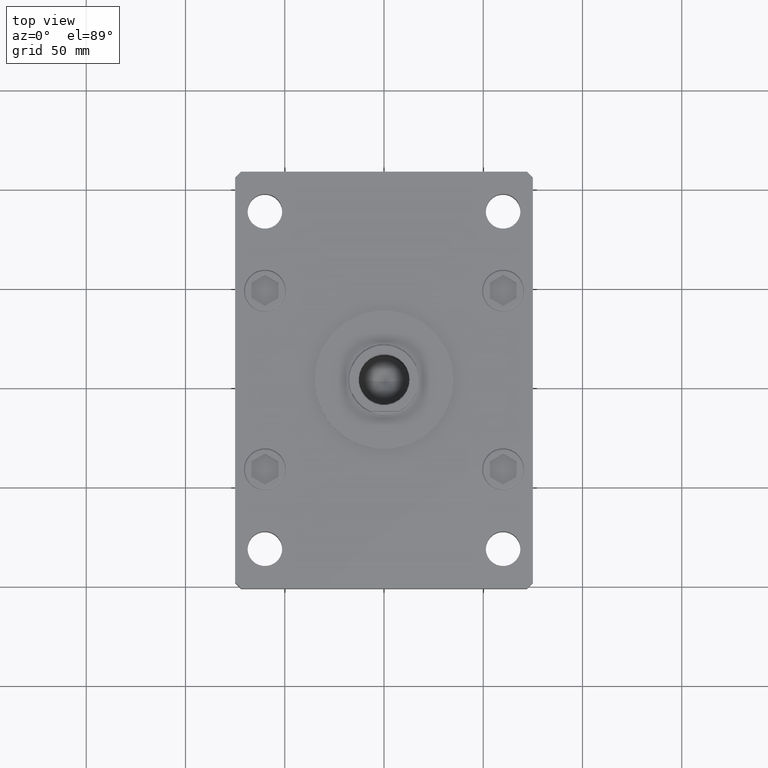
[diagram: clean part render]
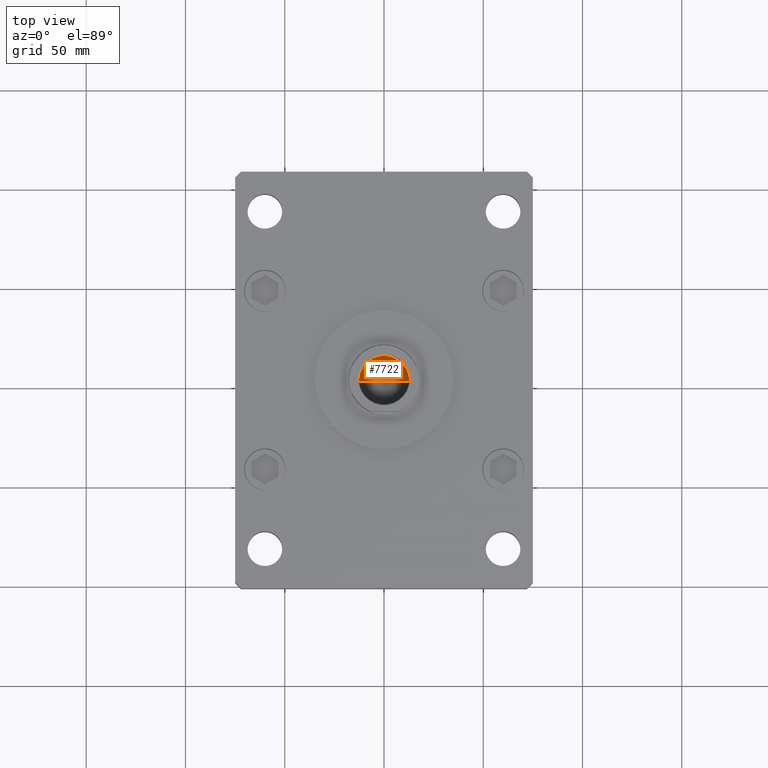
[diagram: same view with one face highlighted and labeled with its STEP entity id]
A machine part, top view. The second image highlights one B-rep face of the part: STEP entity #7722.
In plain terms, the highlighted conical surface has half-angle 59 deg.
Its self-contained STEP definition (entity closure, byte-faithful):
#797 = DIRECTION ( 'NONE',  ( -0.8571673007021125557, 1.049727191138618942E-16, 0.5150380749100536004 ) ) ;
#1251 = FACE_OUTER_BOUND ( 'NONE', #19603, .T. ) ;
#1431 = VECTOR ( 'NONE', #31198, 1000.000000000000114 ) ;
#2367 = VECTOR ( 'NONE', #797, 1000.000000000000114 ) ;
#4862 = CARTESIAN_POINT ( 'NONE',  ( -12.74999999999999112, 1.561424668912874125E-15, 184.5000000000000000 ) ) ;
#5607 = VERTEX_POINT ( 'NONE', #22875 ) ;
#6079 = ORIENTED_EDGE ( 'NONE', *, *, #10358, .T. ) ;
#7722 = ADVANCED_FACE ( 'NONE', ( #1251 ), #21231, .F. ) ;
#8584 = DIRECTION ( 'NONE',  ( 1.000000000000000000, 0.000000000000000000, 0.000000000000000000 ) ) ;
#10296 = VERTEX_POINT ( 'NONE', #46377 ) ;
#10358 = EDGE_CURVE ( 'NONE', #10296, #5607, #17678, .T. ) ;
#11595 = EDGE_CURVE ( 'NONE', #5607, #19392, #53372, .T. ) ;
#14839 = DIRECTION ( 'NONE',  ( 1.000000000000000000, 0.000000000000000000, 0.000000000000000000 ) ) ;
#17678 = LINE ( 'NONE', #51268, #1431 ) ;
#18358 = ORIENTED_EDGE ( 'NONE', *, *, #11595, .T. ) ;
#19392 = VERTEX_POINT ( 'NONE', #39062 ) ;
#19603 = EDGE_LOOP ( 'NONE', ( #31027, #6079, #18358 ) ) ;
#21231 = CONICAL_SURFACE ( 'NONE', #36797, 12.74999999999999112, 1.029744258676655200 ) ;
#21303 = DIRECTION ( 'NONE',  ( -0.000000000000000000, -0.000000000000000000, 1.000000000000000000 ) ) ;
#22155 = DIRECTION ( 'NONE',  ( -0.000000000000000000, -0.000000000000000000, 1.000000000000000000 ) ) ;
#22449 = LINE ( 'NONE', #4862, #2367 ) ;
#22875 = CARTESIAN_POINT ( 'NONE',  ( 12.74999999999999112, 0.000000000000000000, 184.5000000000000000 ) ) ;
#22957 = CARTESIAN_POINT ( 'NONE',  ( 0.000000000000000000, 0.000000000000000000, 184.5000000000000000 ) ) ;
#23317 = EDGE_CURVE ( 'NONE', #10296, #19392, #22449, .T. ) ;
#31027 = ORIENTED_EDGE ( 'NONE', *, *, #23317, .F. ) ;
#31198 = DIRECTION ( 'NONE',  ( 0.8571673007021125557, 0.000000000000000000, 0.5150380749100536004 ) ) ;
#36797 = AXIS2_PLACEMENT_3D ( 'NONE', #46477, #21303, #8584 ) ;
#39062 = CARTESIAN_POINT ( 'NONE',  ( -12.74999999999999112, 1.561424668912874125E-15, 184.5000000000000000 ) ) ;
#46377 = CARTESIAN_POINT ( 'NONE',  ( -1.307202896762960287E-14, 0.000000000000000000, 176.8390271073986355 ) ) ;
#46477 = CARTESIAN_POINT ( 'NONE',  ( 0.000000000000000000, 0.000000000000000000, 184.5000000000000000 ) ) ;
#51268 = CARTESIAN_POINT ( 'NONE',  ( 12.74999999999999112, 0.000000000000000000, 184.5000000000000000 ) ) ;
#52493 = AXIS2_PLACEMENT_3D ( 'NONE', #22957, #22155, #14839 ) ;
#53372 = CIRCLE ( 'NONE', #52493, 12.74999999999999112 ) ;